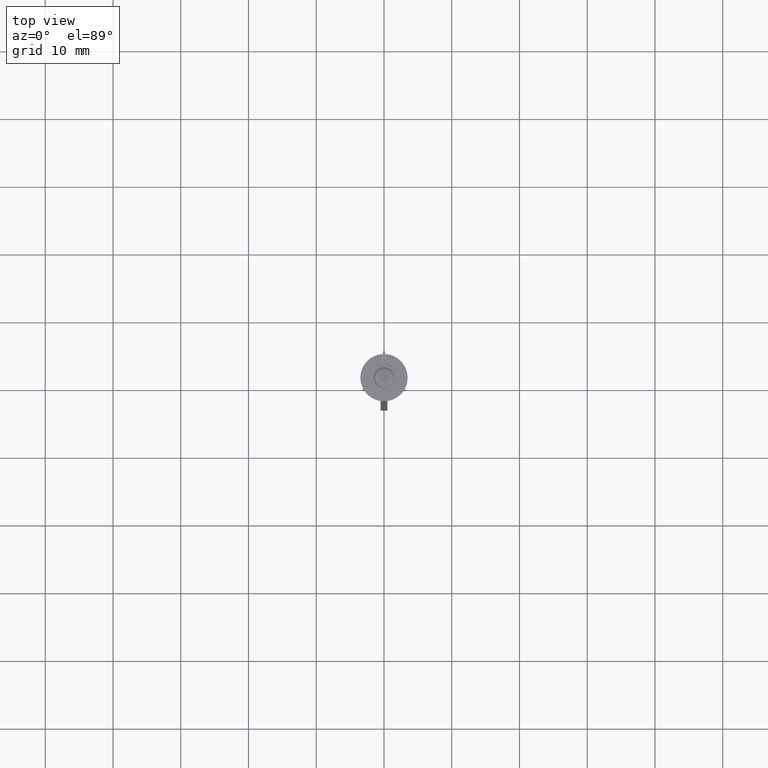
[diagram: clean part render]
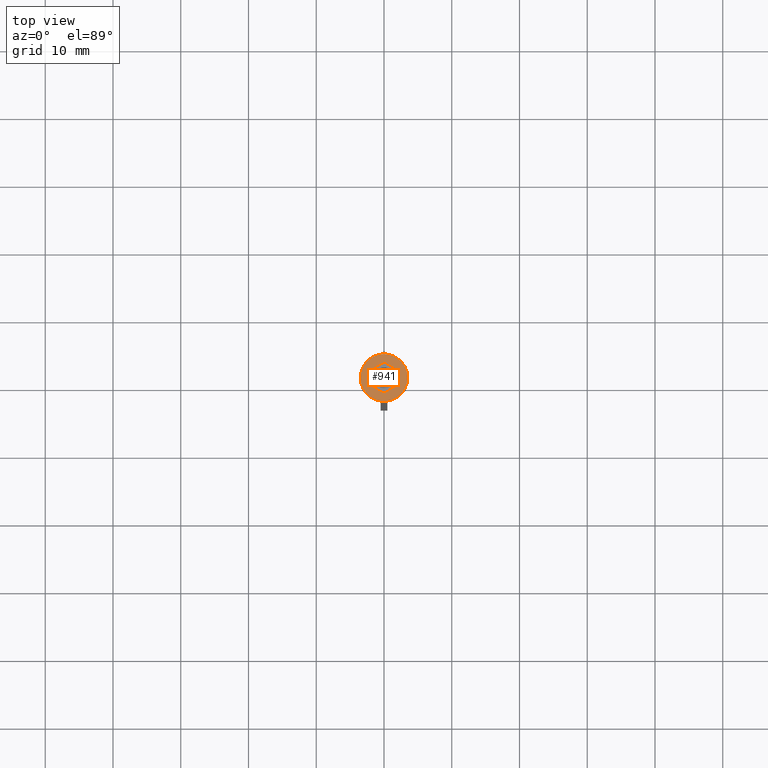
[diagram: same view with one face highlighted and labeled with its STEP entity id]
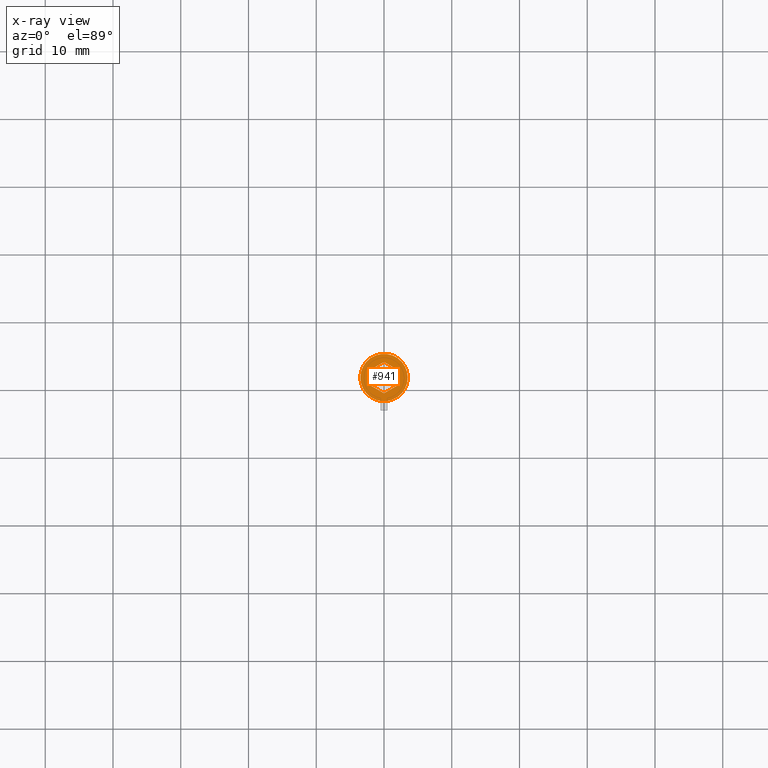
[diagram: x-ray of the same camera — body ghosted, the highlighted face saturated]
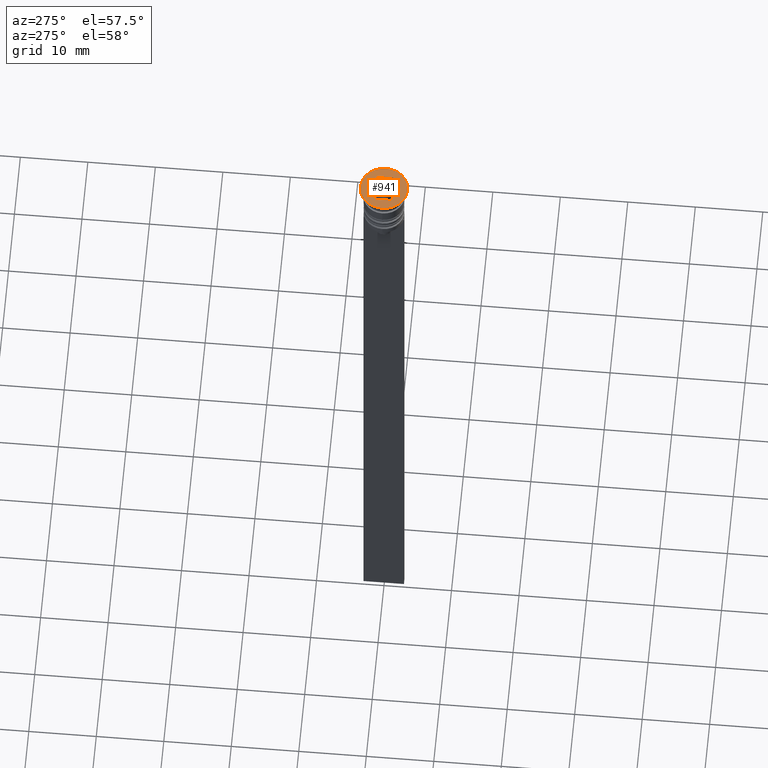
[diagram: same view with one face highlighted and labeled with its STEP entity id]
A machine part, top view. The second image highlights one B-rep face of the part: STEP entity #941.
The next image is the same camera in x-ray: the body ghosted, the highlighted face saturated — about 0% of this face is hidden behind the body in this view.
A second angle (auxiliary view) of the same face is appended — the face is thin or edge-on in the first view.
In plain terms, the highlighted planar face has unit normal (0, -0, 1).
Its self-contained STEP definition (entity closure, byte-faithful):
#50 = EDGE_CURVE ( 'NONE', #195, #694, #191, .T. ) ;
#76 = VERTEX_POINT ( 'NONE', #1993 ) ;
#153 = VECTOR ( 'NONE', #787, 1000.000000000000000 ) ;
#191 = LINE ( 'NONE', #1983, #920 ) ;
#195 = VERTEX_POINT ( 'NONE', #1501 ) ;
#213 = ORIENTED_EDGE ( 'NONE', *, *, #50, .F. ) ;
#325 = CARTESIAN_POINT ( 'NONE',  ( -2.168404344971008868E-16, 2.309401076758502480, 0.000000000000000000 ) ) ;
#332 = VECTOR ( 'NONE', #431, 1000.000000000000000 ) ;
#336 = AXIS2_PLACEMENT_3D ( 'NONE', #396, #1109, #2225 ) ;
#344 = CARTESIAN_POINT ( 'NONE',  ( -3.500000000000000000, 4.286263797015736595E-16, 0.000000000000000000 ) ) ;
#364 = DIRECTION ( 'NONE',  ( 0.000000000000000000, -0.000000000000000000, 1.000000000000000000 ) ) ;
#366 = VECTOR ( 'NONE', #1410, 1000.000000000000000 ) ;
#370 = EDGE_CURVE ( 'NONE', #694, #670, #1925, .T. ) ;
#390 = LINE ( 'NONE', #605, #153 ) ;
#396 = CARTESIAN_POINT ( 'NONE',  ( 0.000000000000000000, 0.000000000000000000, 0.000000000000000000 ) ) ;
#428 = ORIENTED_EDGE ( 'NONE', *, *, #1200, .F. ) ;
#431 = DIRECTION ( 'NONE',  ( 0.000000000000000000, 1.000000000000000000, 0.000000000000000000 ) ) ;
#481 = ORIENTED_EDGE ( 'NONE', *, *, #628, .T. ) ;
#559 = DIRECTION ( 'NONE',  ( 1.000000000000000000, 0.000000000000000000, 0.000000000000000000 ) ) ;
#588 = AXIS2_PLACEMENT_3D ( 'NONE', #2298, #364, #1255 ) ;
#605 = CARTESIAN_POINT ( 'NONE',  ( -2.000000000000000000, 1.154700538379251018, 0.000000000000000000 ) ) ;
#628 = EDGE_CURVE ( 'NONE', #76, #1420, #2009, .T. ) ;
#670 = VERTEX_POINT ( 'NONE', #934 ) ;
#675 = EDGE_CURVE ( 'NONE', #670, #1654, #1646, .T. ) ;
#681 = CARTESIAN_POINT ( 'NONE',  ( 2.000000000000000000, 1.154700538379251240, 0.000000000000000000 ) ) ;
#694 = VERTEX_POINT ( 'NONE', #1283 ) ;
#787 = DIRECTION ( 'NONE',  ( 0.000000000000000000, -1.000000000000000000, 0.000000000000000000 ) ) ;
#850 = CARTESIAN_POINT ( 'NONE',  ( 3.997386383800531884E-16, -2.309401076758503368, 0.000000000000000000 ) ) ;
#863 = FACE_BOUND ( 'NONE', #1609, .T. ) ;
#868 = LINE ( 'NONE', #1398, #366 ) ;
#920 = VECTOR ( 'NONE', #1815, 1000.000000000000114 ) ;
#934 = CARTESIAN_POINT ( 'NONE',  ( 2.000000000000000000, -1.154700538379251684, 0.000000000000000000 ) ) ;
#941 = ADVANCED_FACE ( 'NONE', ( #863, #1404 ), #1209, .T. ) ;
#944 = EDGE_CURVE ( 'NONE', #2245, #2256, #1393, .T. ) ;
#1035 = ORIENTED_EDGE ( 'NONE', *, *, #944, .F. ) ;
#1047 = CIRCLE ( 'NONE', #336, 3.500000000000000000 ) ;
#1096 = DIRECTION ( 'NONE',  ( -0.000000000000000000, -0.000000000000000000, 1.000000000000000000 ) ) ;
#1109 = DIRECTION ( 'NONE',  ( -0.000000000000000000, -0.000000000000000000, 1.000000000000000000 ) ) ;
#1200 = EDGE_CURVE ( 'NONE', #1654, #2245, #868, .T. ) ;
#1209 = PLANE ( 'NONE',  #588 ) ;
#1255 = DIRECTION ( 'NONE',  ( 1.000000000000000000, 0.000000000000000000, 0.000000000000000000 ) ) ;
#1283 = CARTESIAN_POINT ( 'NONE',  ( 3.997386383800531884E-16, -2.309401076758503368, 0.000000000000000000 ) ) ;
#1375 = ORIENTED_EDGE ( 'NONE', *, *, #1543, .T. ) ;
#1393 = LINE ( 'NONE', #1627, #1634 ) ;
#1398 = CARTESIAN_POINT ( 'NONE',  ( 2.000000000000000000, 1.154700538379251240, 0.000000000000000000 ) ) ;
#1404 = FACE_OUTER_BOUND ( 'NONE', #1778, .T. ) ;
#1410 = DIRECTION ( 'NONE',  ( -0.8660254037844387076, 0.4999999999999998890, 0.000000000000000000 ) ) ;
#1420 = VERTEX_POINT ( 'NONE', #344 ) ;
#1475 = CARTESIAN_POINT ( 'NONE',  ( 0.000000000000000000, 0.000000000000000000, 0.000000000000000000 ) ) ;
#1501 = CARTESIAN_POINT ( 'NONE',  ( -2.000000000000000000, -1.154700538379252128, 0.000000000000000000 ) ) ;
#1543 = EDGE_CURVE ( 'NONE', #1420, #76, #1047, .T. ) ;
#1567 = DIRECTION ( 'NONE',  ( -0.8660254037844387076, -0.4999999999999999445, 0.000000000000000000 ) ) ;
#1570 = DIRECTION ( 'NONE',  ( 0.8660254037844384856, 0.5000000000000001110, 0.000000000000000000 ) ) ;
#1577 = ORIENTED_EDGE ( 'NONE', *, *, #2294, .F. ) ;
#1609 = EDGE_LOOP ( 'NONE', ( #428, #1881, #1726, #213, #1577, #1035 ) ) ;
#1627 = CARTESIAN_POINT ( 'NONE',  ( 0.000000000000000000, 2.309401076758502480, 0.000000000000000000 ) ) ;
#1634 = VECTOR ( 'NONE', #1567, 1000.000000000000000 ) ;
#1646 = LINE ( 'NONE', #2011, #332 ) ;
#1654 = VERTEX_POINT ( 'NONE', #681 ) ;
#1672 = VECTOR ( 'NONE', #1570, 1000.000000000000227 ) ;
#1726 = ORIENTED_EDGE ( 'NONE', *, *, #370, .F. ) ;
#1778 = EDGE_LOOP ( 'NONE', ( #481, #1375 ) ) ;
#1815 = DIRECTION ( 'NONE',  ( 0.8660254037844387076, -0.4999999999999997780, 0.000000000000000000 ) ) ;
#1824 = AXIS2_PLACEMENT_3D ( 'NONE', #1475, #1096, #559 ) ;
#1881 = ORIENTED_EDGE ( 'NONE', *, *, #675, .F. ) ;
#1925 = LINE ( 'NONE', #850, #1672 ) ;
#1983 = CARTESIAN_POINT ( 'NONE',  ( -2.000000000000000000, -1.154700538379252128, 0.000000000000000000 ) ) ;
#1993 = CARTESIAN_POINT ( 'NONE',  ( 3.500000000000000000, 0.000000000000000000, 0.000000000000000000 ) ) ;
#2009 = CIRCLE ( 'NONE', #1824, 3.500000000000000000 ) ;
#2011 = CARTESIAN_POINT ( 'NONE',  ( 2.000000000000000000, -1.154700538379251684, 0.000000000000000000 ) ) ;
#2131 = CARTESIAN_POINT ( 'NONE',  ( -2.000000000000000000, 1.154700538379251018, 0.000000000000000000 ) ) ;
#2225 = DIRECTION ( 'NONE',  ( 1.000000000000000000, 0.000000000000000000, 0.000000000000000000 ) ) ;
#2245 = VERTEX_POINT ( 'NONE', #325 ) ;
#2256 = VERTEX_POINT ( 'NONE', #2131 ) ;
#2294 = EDGE_CURVE ( 'NONE', #2256, #195, #390, .T. ) ;
#2298 = CARTESIAN_POINT ( 'NONE',  ( 0.000000000000000000, 0.000000000000000000, 0.000000000000000000 ) ) ;